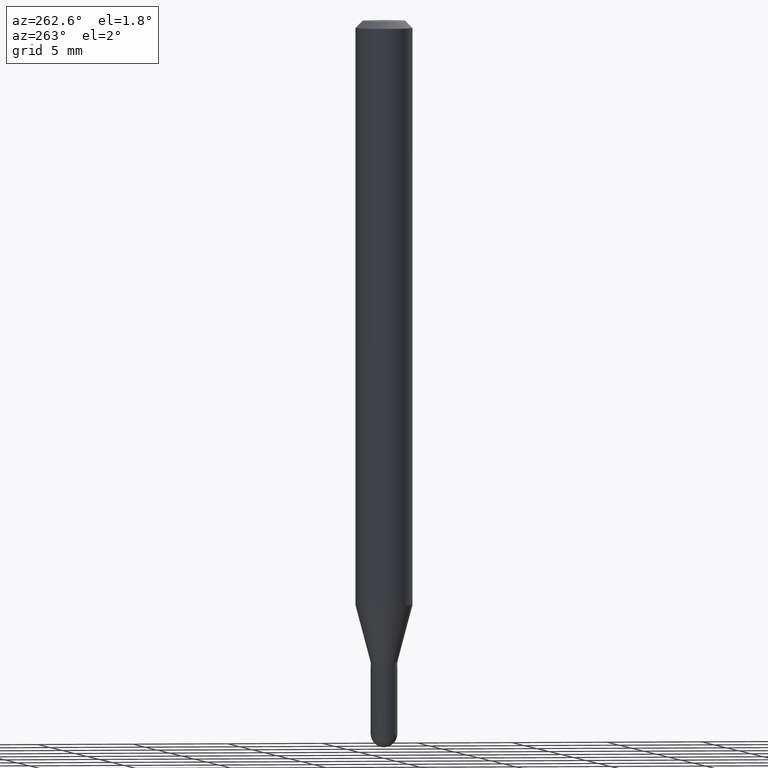
[diagram: clean part render]
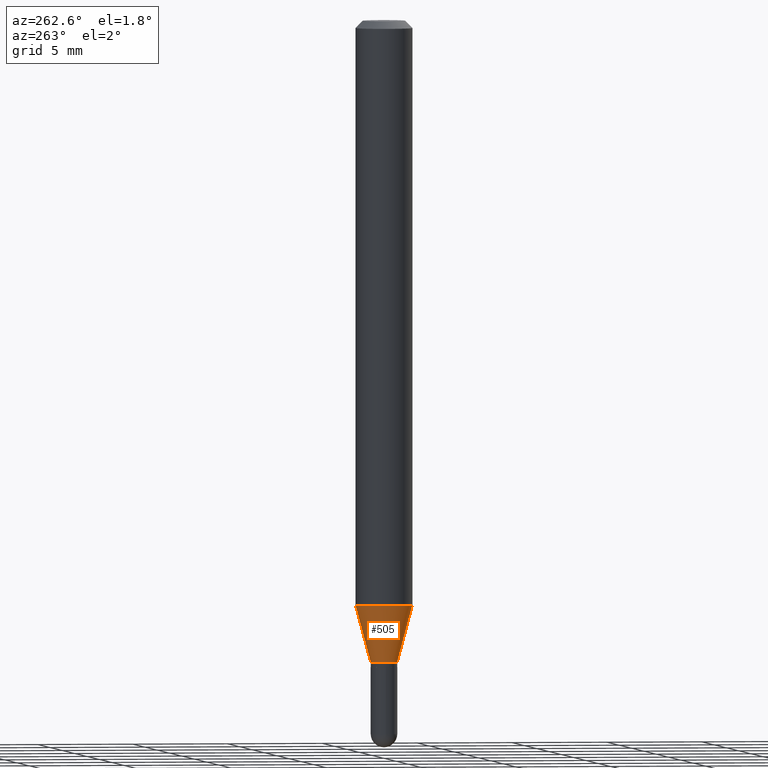
[diagram: same view with one face highlighted and labeled with its STEP entity id]
A machine part, auxiliary view. The second image highlights one B-rep face of the part: STEP entity #505.
In plain terms, the highlighted conical surface has half-angle 15 deg.
Its self-contained STEP definition (entity closure, byte-faithful):
#18 = DIRECTION ( 'NONE',  ( 1.839019923739603076E-15, 0.2588190451025253469, 0.9659258262890670910 ) ) ;
#21 = CIRCLE ( 'NONE', #330, 0.05904999999999999832 ) ;
#28 = EDGE_CURVE ( 'NONE', #257, #442, #21, .T. ) ;
#43 = DIRECTION ( 'NONE',  ( -6.982962677686265922E-15, -1.000000000000000000, 0.000000000000000000 ) ) ;
#54 = ORIENTED_EDGE ( 'NONE', *, *, #338, .T. ) ;
#94 = ORIENTED_EDGE ( 'NONE', *, *, #239, .F. ) ;
#101 = CIRCLE ( 'NONE', #458, 0.02754999999999965810 ) ;
#113 = VECTOR ( 'NONE', #320, 39.37007874015748143 ) ;
#132 = CARTESIAN_POINT ( 'NONE',  ( 2.943147646551666827E-29, -4.202243181785466400E-15, -1.203540399561579655 ) ) ;
#142 = AXIS2_PLACEMENT_3D ( 'NONE', #381, #506, #183 ) ;
#156 = CARTESIAN_POINT ( 'NONE',  ( -1.923806217702219352E-16, -0.02755000000000427246, -1.321099999999999941 ) ) ;
#165 = CARTESIAN_POINT ( 'NONE',  ( 4.195754854663683357E-16, 0.05904999999999576560, -1.203540399561579877 ) ) ;
#183 = DIRECTION ( 'NONE',  ( -6.982962677686265922E-15, -1.000000000000000000, 0.000000000000000000 ) ) ;
#210 = EDGE_LOOP ( 'NONE', ( #94, #410, #54, #293 ) ) ;
#229 = DIRECTION ( 'NONE',  ( -6.982962677686265922E-15, -1.000000000000000000, 4.626330217890369336E-15 ) ) ;
#239 = EDGE_CURVE ( 'NONE', #494, #257, #454, .T. ) ;
#240 = DIRECTION ( 'NONE',  ( -2.445408270153443463E-29, 3.491568029886026969E-15, 1.000000000000000000 ) ) ;
#257 = VERTEX_POINT ( 'NONE', #165 ) ;
#292 = CARTESIAN_POINT ( 'NONE',  ( 1.957545237019374412E-16, 0.02754999999999504373, -1.321099999999999941 ) ) ;
#293 = ORIENTED_EDGE ( 'NONE', *, *, #28, .F. ) ;
#307 = VECTOR ( 'NONE', #18, 39.37007874015748143 ) ;
#308 = CARTESIAN_POINT ( 'NONE',  ( 3.076650045841530487E-16, 0.02754999999999504373, -1.321099999999999941 ) ) ;
#311 = VERTEX_POINT ( 'NONE', #326 ) ;
#320 = DIRECTION ( 'NONE',  ( -1.807323732225332900E-15, -0.2588190451025185745, 0.9659258262890689783 ) ) ;
#324 = DIRECTION ( 'NONE',  ( -2.445408270153443463E-29, 3.491568029886026969E-15, 1.000000000000000000 ) ) ;
#326 = CARTESIAN_POINT ( 'NONE',  ( -1.923806217702219352E-16, -0.02755000000000427246, -1.321099999999999941 ) ) ;
#330 = AXIS2_PLACEMENT_3D ( 'NONE', #132, #240, #229 ) ;
#338 = EDGE_CURVE ( 'NONE', #311, #442, #370, .T. ) ;
#348 = FACE_OUTER_BOUND ( 'NONE', #210, .T. ) ;
#370 = LINE ( 'NONE', #156, #113 ) ;
#381 = CARTESIAN_POINT ( 'NONE',  ( 3.230628865699713761E-29, -4.612710524282430693E-15, -1.321099999999999941 ) ) ;
#399 = CARTESIAN_POINT ( 'NONE',  ( 3.230628865699713761E-29, -4.612710524282430693E-15, -1.321099999999999941 ) ) ;
#410 = ORIENTED_EDGE ( 'NONE', *, *, #511, .T. ) ;
#442 = VERTEX_POINT ( 'NONE', #473 ) ;
#454 = LINE ( 'NONE', #292, #307 ) ;
#458 = AXIS2_PLACEMENT_3D ( 'NONE', #399, #324, #43 ) ;
#473 = CARTESIAN_POINT ( 'NONE',  ( -4.123439461173447462E-16, -0.05905000000000423105, -1.203540399561579655 ) ) ;
#494 = VERTEX_POINT ( 'NONE', #308 ) ;
#505 = ADVANCED_FACE ( 'NONE', ( #348 ), #510, .T. ) ;
#506 = DIRECTION ( 'NONE',  ( -2.445408270153443463E-29, 3.491568029886026969E-15, 1.000000000000000000 ) ) ;
#510 = CONICAL_SURFACE ( 'NONE', #142, 0.02754999999999965810, 0.2617993877991506846 ) ;
#511 = EDGE_CURVE ( 'NONE', #494, #311, #101, .T. ) ;